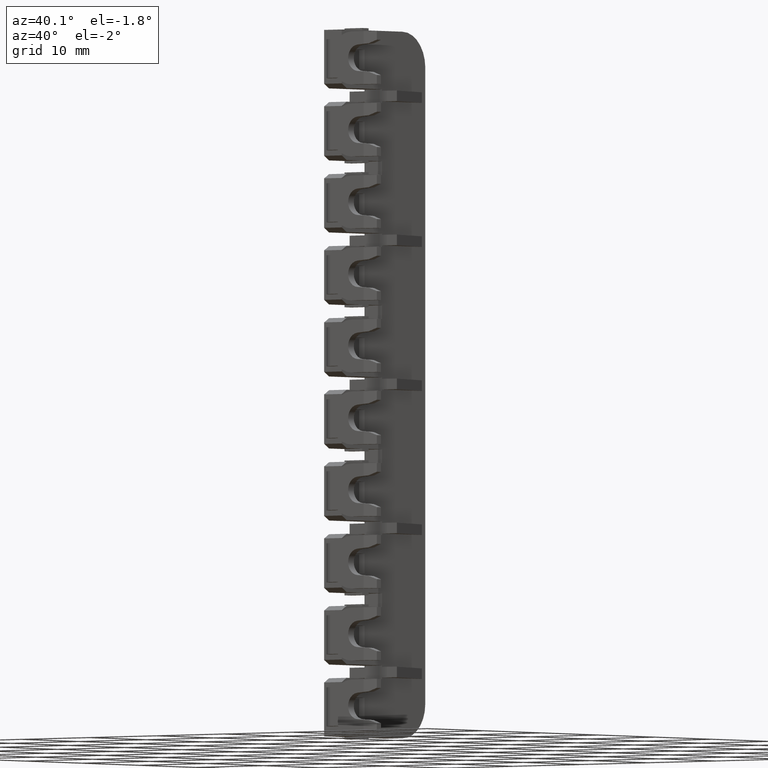
[diagram: clean part render]
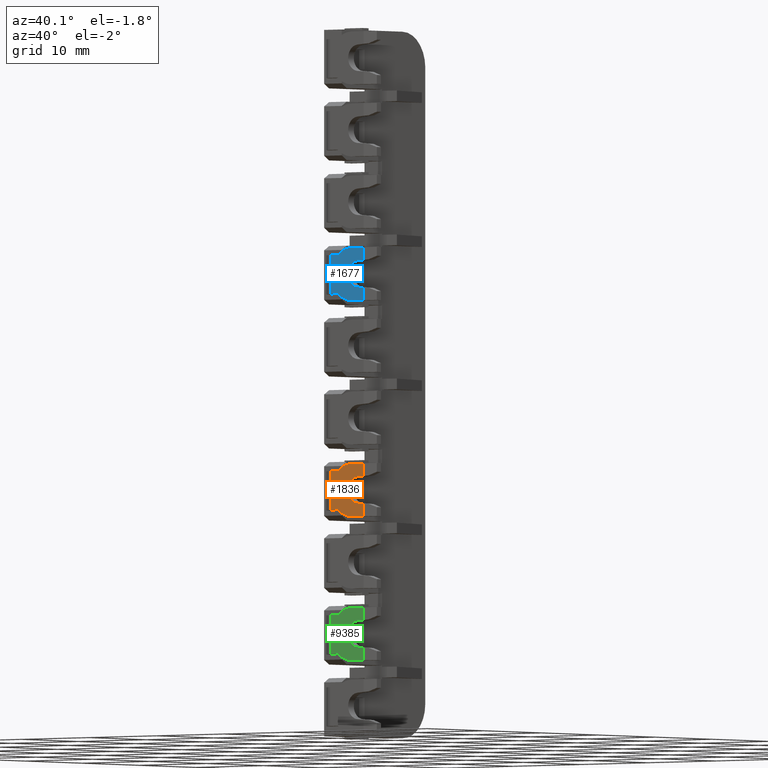
[diagram: same view with three faces highlighted in distinct colors, each labeled with its STEP entity id]
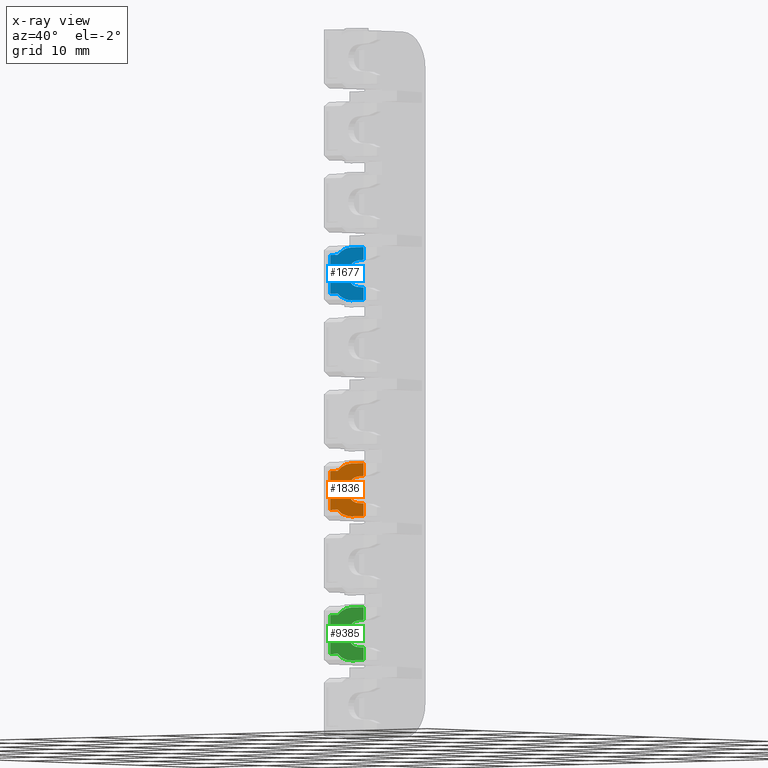
[diagram: x-ray of the same camera — body ghosted, the three highlighted faces saturated]
A machine part, auxiliary view with three faces highlighted in distinct colors.
The next image is the same camera in x-ray (body ghosted, the three faces saturated) — at least one of them is partly hidden behind the body in this view.
Their STEP definitions:

[orange] entity #1836 — the highlighted planar face has unit normal (-0, 1, 0).
#644 = CARTESIAN_POINT ( 'NONE',  ( 1559.379892790780100, 1078.959529724810000, -41.85000000000000100 ) ) ;
#649 = CARTESIAN_POINT ( 'NONE',  ( 1559.379892790780100, 1078.959529724810000, -43.28304746527870600 ) ) ;
#658 = CARTESIAN_POINT ( 'NONE',  ( 1554.445209356664900, 1078.959529724810000, -42.64999999999999900 ) ) ;
#661 = CARTESIAN_POINT ( 'NONE',  ( 1555.541669528729900, 1078.959529724810000, -42.64999999999999900 ) ) ;
#665 = CARTESIAN_POINT ( 'NONE',  ( 1557.581277334165000, 1078.959529724810000, -47.84999999999999400 ) ) ;
#684 = CARTESIAN_POINT ( 'NONE',  ( 1555.541669526664900, 1078.959529724810000, -47.04999999808789800 ) ) ;
#707 = CARTESIAN_POINT ( 'NONE',  ( 1558.465335063180000, 1078.959529724810000, -46.34543455379099400 ) ) ;
#736 = CARTESIAN_POINT ( 'NONE',  ( 1558.465335063180000, 1078.959529724810000, -43.35456544620934900 ) ) ;
#739 = CARTESIAN_POINT ( 'NONE',  ( 1554.445209356664900, 1078.959529724810000, -47.04999999808789800 ) ) ;
#1836 = ADVANCED_FACE ( 'NONE', ( #11390 ), #11417, .F. ) ;
#1886 = EDGE_CURVE ( 'NONE', #2474, #2466, #5154, .T. ) ;
#1897 = EDGE_CURVE ( 'NONE', #2458, #2454, #11649, .T. ) ;
#1904 = EDGE_CURVE ( 'NONE', #2479, #2474, #11665, .T. ) ;
#1910 = EDGE_CURVE ( 'NONE', #2479, #2454, #11645, .T. ) ;
#2381 = VERTEX_POINT ( 'NONE', #12173 ) ;
#2403 = VERTEX_POINT ( 'NONE', #12205 ) ;
#2413 = VERTEX_POINT ( 'NONE', #11515 ) ;
#2430 = VERTEX_POINT ( 'NONE', #649 ) ;
#2439 = VERTEX_POINT ( 'NONE', #644 ) ;
#2454 = VERTEX_POINT ( 'NONE', #658 ) ;
#2458 = VERTEX_POINT ( 'NONE', #661 ) ;
#2466 = VERTEX_POINT ( 'NONE', #665 ) ;
#2473 = VERTEX_POINT ( 'NONE', #736 ) ;
#2474 = VERTEX_POINT ( 'NONE', #684 ) ;
#2479 = VERTEX_POINT ( 'NONE', #739 ) ;
#2488 = VERTEX_POINT ( 'NONE', #707 ) ;
#3472 = VECTOR ( 'NONE', #13690, 1000.000000000000000 ) ;
#3486 = AXIS2_PLACEMENT_3D ( 'NONE', #12652, #12654, #12768 ) ;
#3488 = CIRCLE ( 'NONE', #3486, 3.000000000000002700 ) ;
#3490 = VECTOR ( 'NONE', #12882, 1000.000000000000000 ) ;
#3501 = VECTOR ( 'NONE', #12700, 1000.000000000000000 ) ;
#5071 = AXIS2_PLACEMENT_3D ( 'NONE', #11408, #11435, #11430 ) ;
#5122 = VECTOR ( 'NONE', #11644, 1000.000000000000000 ) ;
#5154 = CIRCLE ( 'NONE', #5155, 3.000000000000002700 ) ;
#5155 = AXIS2_PLACEMENT_3D ( 'NONE', #11634, #11604, #11627 ) ;
#5158 = VECTOR ( 'NONE', #11664, 1000.000000000000000 ) ;
#5172 = VECTOR ( 'NONE', #11674, 1000.000000000000000 ) ;
#7074 = EDGE_LOOP ( 'NONE', ( #15599, #15617, #15596, #15503, #15501, #15515, #15600, #15607, #15542, #15602, #15589, #15513 ) ) ;
#8216 = VECTOR ( 'NONE', #13662, 1000.000000000000000 ) ;
#8542 = VECTOR ( 'NONE', #13524, 1000.000000000000000 ) ;
#8557 = VECTOR ( 'NONE', #13516, 1000.000000000000000 ) ;
#8565 = CIRCLE ( 'NONE', #8577, 1.500000000000001300 ) ;
#8577 = AXIS2_PLACEMENT_3D ( 'NONE', #13472, #13474, #13510 ) ;
#9198 = EDGE_CURVE ( 'NONE', #2488, #2473, #8565, .T. ) ;
#9209 = EDGE_CURVE ( 'NONE', #2381, #2488, #13515, .T. ) ;
#9211 = EDGE_CURVE ( 'NONE', #2466, #2413, #13521, .T. ) ;
#9249 = EDGE_CURVE ( 'NONE', #2473, #2430, #13608, .T. ) ;
#9266 = EDGE_CURVE ( 'NONE', #2430, #2439, #13701, .T. ) ;
#9283 = EDGE_CURVE ( 'NONE', #2413, #2381, #12702, .T. ) ;
#9284 = EDGE_CURVE ( 'NONE', #2403, #2458, #3488, .T. ) ;
#9298 = EDGE_CURVE ( 'NONE', #2439, #2403, #12743, .T. ) ;
#11390 = FACE_OUTER_BOUND ( 'NONE', #7074, .T. ) ;
#11408 = CARTESIAN_POINT ( 'NONE',  ( 1557.581277334165000, 1078.959529724810000, -44.85000000000000100 ) ) ;
#11417 = PLANE ( 'NONE',  #5071 ) ;
#11430 = DIRECTION ( 'NONE',  ( 2.842270788972625200E-015, 0.0000000000000000000, 1.000000000000000000 ) ) ;
#11435 = DIRECTION ( 'NONE',  ( -5.551115123125779600E-017, 1.000000000000000000, 1.577777236068458100E-031 ) ) ;
#11515 = CARTESIAN_POINT ( 'NONE',  ( 1559.379892790780100, 1078.959529724810000, -47.84999999999999400 ) ) ;
#11604 = DIRECTION ( 'NONE',  ( 5.551115123125689600E-017, -1.000000000000000000, -2.891205793294685200E-016 ) ) ;
#11627 = DIRECTION ( 'NONE',  ( 0.0000000000000000000, 0.0000000000000000000, 1.000000000000000000 ) ) ;
#11634 = CARTESIAN_POINT ( 'NONE',  ( 1557.581277334165000, 1078.959529724810000, -44.85000000000000100 ) ) ;
#11641 = CARTESIAN_POINT ( 'NONE',  ( 1554.445209356664900, 1078.959529724810000, -47.04999999808789800 ) ) ;
#11642 = CARTESIAN_POINT ( 'NONE',  ( 1555.541669526664900, 1078.959529724810000, -47.04999999808789800 ) ) ;
#11644 = DIRECTION ( 'NONE',  ( 2.996938929019315300E-015, -1.611929227617499900E-016, 1.000000000000000000 ) ) ;
#11645 = LINE ( 'NONE', #11641, #5122 ) ;
#11649 = LINE ( 'NONE', #11650, #5172 ) ;
#11650 = CARTESIAN_POINT ( 'NONE',  ( 1555.541669528729900, 1078.959529724810000, -42.64999999999999900 ) ) ;
#11664 = DIRECTION ( 'NONE',  ( 1.000000000000000000, 2.775557561562884600E-017, -2.698786286577960100E-015 ) ) ;
#11665 = LINE ( 'NONE', #11642, #5158 ) ;
#11674 = DIRECTION ( 'NONE',  ( -1.000000000000000000, -2.775557561562889800E-017, 3.033297811906350000E-015 ) ) ;
#12173 = CARTESIAN_POINT ( 'NONE',  ( 1559.379892790780100, 1078.959529724810000, -46.41695253472169500 ) ) ;
#12205 = CARTESIAN_POINT ( 'NONE',  ( 1557.581277334165000, 1078.959529724810000, -41.85000000000000100 ) ) ;
#12652 = CARTESIAN_POINT ( 'NONE',  ( 1557.581277334165000, 1078.959529724810000, -44.85000000000000100 ) ) ;
#12654 = DIRECTION ( 'NONE',  ( 5.551115123125689600E-017, -1.000000000000000000, -2.891205793294685200E-016 ) ) ;
#12699 = CARTESIAN_POINT ( 'NONE',  ( 1559.379892790780100, 1078.959529724810000, -44.85000000000000100 ) ) ;
#12700 = DIRECTION ( 'NONE',  ( -8.948019354321770600E-031, -1.577777236068454800E-031, 1.000000000000000000 ) ) ;
#12702 = LINE ( 'NONE', #12699, #3501 ) ;
#12743 = LINE ( 'NONE', #12744, #3490 ) ;
#12744 = CARTESIAN_POINT ( 'NONE',  ( 1557.581277334165000, 1078.959529724810000, -41.85000000000000100 ) ) ;
#12768 = DIRECTION ( 'NONE',  ( 0.0000000000000000000, 0.0000000000000000000, 1.000000000000000000 ) ) ;
#12882 = DIRECTION ( 'NONE',  ( -1.000000000000000000, -2.775557561562889800E-017, 2.909388992282235300E-015 ) ) ;
#13472 = CARTESIAN_POINT ( 'NONE',  ( 1558.582277336664900, 1078.959529724810000, -44.85000000000000100 ) ) ;
#13474 = DIRECTION ( 'NONE',  ( -5.551115123125779600E-017, 1.000000000000000000, 1.667257283196814900E-031 ) ) ;
#13509 = CARTESIAN_POINT ( 'NONE',  ( 1561.081277336664900, 1078.959529724810000, -46.55000000000000400 ) ) ;
#13510 = DIRECTION ( 'NONE',  ( 0.0000000000000000000, 0.0000000000000000000, -1.000000000000000000 ) ) ;
#13515 = LINE ( 'NONE', #13509, #8557 ) ;
#13516 = DIRECTION ( 'NONE',  ( -0.9969563691939024000, -4.023794246251211200E-017, 0.07796151565812033100 ) ) ;
#13521 = LINE ( 'NONE', #13525, #8542 ) ;
#13524 = DIRECTION ( 'NONE',  ( 1.000000000000000000, 2.775557561562889800E-017, -2.909388992282235300E-015 ) ) ;
#13525 = CARTESIAN_POINT ( 'NONE',  ( 1557.581277334165000, 1078.959529724810000, -47.84999999999999400 ) ) ;
#13608 = LINE ( 'NONE', #13666, #8216 ) ;
#13662 = DIRECTION ( 'NONE',  ( 0.9969563691939030700, 1.510425331877653500E-017, 0.07796151565811303100 ) ) ;
#13666 = CARTESIAN_POINT ( 'NONE',  ( 1561.081277336664900, 1078.959529724810000, -43.14999999999999900 ) ) ;
#13689 = CARTESIAN_POINT ( 'NONE',  ( 1559.379892790780100, 1078.959529724810000, -44.85000000000000100 ) ) ;
#13690 = DIRECTION ( 'NONE',  ( -8.948019354321770600E-031, -1.577777236068454800E-031, 1.000000000000000000 ) ) ;
#13701 = LINE ( 'NONE', #13689, #3472 ) ;
#15501 = ORIENTED_EDGE ( 'NONE', *, *, #9249, .T. ) ;
#15503 = ORIENTED_EDGE ( 'NONE', *, *, #9198, .T. ) ;
#15513 = ORIENTED_EDGE ( 'NONE', *, *, #1886, .T. ) ;
#15515 = ORIENTED_EDGE ( 'NONE', *, *, #9266, .T. ) ;
#15542 = ORIENTED_EDGE ( 'NONE', *, *, #1897, .T. ) ;
#15589 = ORIENTED_EDGE ( 'NONE', *, *, #1904, .T. ) ;
#15596 = ORIENTED_EDGE ( 'NONE', *, *, #9209, .T. ) ;
#15599 = ORIENTED_EDGE ( 'NONE', *, *, #9211, .T. ) ;
#15600 = ORIENTED_EDGE ( 'NONE', *, *, #9298, .T. ) ;
#15602 = ORIENTED_EDGE ( 'NONE', *, *, #1910, .F. ) ;
#15607 = ORIENTED_EDGE ( 'NONE', *, *, #9284, .T. ) ;
#15617 = ORIENTED_EDGE ( 'NONE', *, *, #9283, .T. ) ;

[blue] entity #1677 — the highlighted planar face has unit normal (-0, 1, 0).
#676 = CARTESIAN_POINT ( 'NONE',  ( 1559.379892790780100, 1078.959529724810000, -23.40000000000000200 ) ) ;
#696 = CARTESIAN_POINT ( 'NONE',  ( 1555.541669526664900, 1078.959529724810000, -18.20000000191240000 ) ) ;
#709 = CARTESIAN_POINT ( 'NONE',  ( 1559.379892790780100, 1078.959529724810000, -18.83304746527860000 ) ) ;
#712 = CARTESIAN_POINT ( 'NONE',  ( 1554.445209356664900, 1078.959529724810000, -22.59999999999999800 ) ) ;
#717 = CARTESIAN_POINT ( 'NONE',  ( 1555.541669528729900, 1078.959529724810000, -22.59999999999999800 ) ) ;
#721 = CARTESIAN_POINT ( 'NONE',  ( 1558.465335063180000, 1078.959529724810000, -21.89543455379095200 ) ) ;
#732 = CARTESIAN_POINT ( 'NONE',  ( 1559.379892790780100, 1078.959529724810000, -21.96695253472160300 ) ) ;
#745 = CARTESIAN_POINT ( 'NONE',  ( 1557.581277334165000, 1078.959529724810000, -17.39999999999999900 ) ) ;
#752 = CARTESIAN_POINT ( 'NONE',  ( 1559.379892790780100, 1078.959529724810000, -17.39999999999999900 ) ) ;
#768 = CARTESIAN_POINT ( 'NONE',  ( 1558.465335063180000, 1078.959529724810000, -18.90456544620924700 ) ) ;
#777 = CARTESIAN_POINT ( 'NONE',  ( 1554.445209356664900, 1078.959529724810000, -18.20000000191235000 ) ) ;
#779 = CARTESIAN_POINT ( 'NONE',  ( 1557.581277334165000, 1078.959529724810000, -23.40000000000000200 ) ) ;
#1677 = ADVANCED_FACE ( 'NONE', ( #14490 ), #14454, .F. ) ;
#1880 = EDGE_CURVE ( 'NONE', #2522, #2502, #11552, .T. ) ;
#1911 = EDGE_CURVE ( 'NONE', #2553, #2486, #11699, .T. ) ;
#1936 = EDGE_CURVE ( 'NONE', #2557, #2506, #5197, .T. ) ;
#1949 = EDGE_CURVE ( 'NONE', #2459, #2502, #11767, .T. ) ;
#1955 = EDGE_CURVE ( 'NONE', #2563, #2542, #11811, .T. ) ;
#1958 = EDGE_CURVE ( 'NONE', #2459, #2557, #11848, .T. ) ;
#1978 = EDGE_CURVE ( 'NONE', #2504, #2542, #11827, .T. ) ;
#1983 = EDGE_CURVE ( 'NONE', #2553, #2513, #11864, .T. ) ;
#1984 = EDGE_CURVE ( 'NONE', #2506, #2486, #11872, .T. ) ;
#1986 = EDGE_CURVE ( 'NONE', #2513, #2563, #5295, .T. ) ;
#1987 = EDGE_CURVE ( 'NONE', #2504, #2540, #11905, .T. ) ;
#1988 = EDGE_CURVE ( 'NONE', #2540, #2522, #5298, .T. ) ;
#2459 = VERTEX_POINT ( 'NONE', #676 ) ;
#2486 = VERTEX_POINT ( 'NONE', #712 ) ;
#2502 = VERTEX_POINT ( 'NONE', #732 ) ;
#2504 = VERTEX_POINT ( 'NONE', #709 ) ;
#2506 = VERTEX_POINT ( 'NONE', #717 ) ;
#2513 = VERTEX_POINT ( 'NONE', #696 ) ;
#2522 = VERTEX_POINT ( 'NONE', #721 ) ;
#2540 = VERTEX_POINT ( 'NONE', #768 ) ;
#2542 = VERTEX_POINT ( 'NONE', #752 ) ;
#2553 = VERTEX_POINT ( 'NONE', #777 ) ;
#2557 = VERTEX_POINT ( 'NONE', #779 ) ;
#2563 = VERTEX_POINT ( 'NONE', #745 ) ;
#4986 = AXIS2_PLACEMENT_3D ( 'NONE', #14499, #14456, #14460 ) ;
#5137 = VECTOR ( 'NONE', #11700, 1000.000000000000000 ) ;
#5169 = VECTOR ( 'NONE', #11562, 1000.000000000000100 ) ;
#5197 = CIRCLE ( 'NONE', #5214, 2.999999999999999100 ) ;
#5204 = VECTOR ( 'NONE', #11778, 1000.000000000000000 ) ;
#5214 = AXIS2_PLACEMENT_3D ( 'NONE', #11750, #11730, #11736 ) ;
#5218 = VECTOR ( 'NONE', #11786, 1000.000000000000000 ) ;
#5239 = VECTOR ( 'NONE', #11846, 1000.000000000000000 ) ;
#5248 = AXIS2_PLACEMENT_3D ( 'NONE', #11913, #11962, #11908 ) ;
#5252 = VECTOR ( 'NONE', #11874, 1000.000000000000000 ) ;
#5253 = VECTOR ( 'NONE', #11912, 1000.000000000000000 ) ;
#5275 = VECTOR ( 'NONE', #11900, 1000.000000000000000 ) ;
#5295 = CIRCLE ( 'NONE', #5302, 2.999999999999999100 ) ;
#5298 = CIRCLE ( 'NONE', #5248, 1.500000000000001300 ) ;
#5300 = VECTOR ( 'NONE', #11876, 1000.000000000000000 ) ;
#5302 = AXIS2_PLACEMENT_3D ( 'NONE', #11929, #11942, #11930 ) ;
#7534 = ORIENTED_EDGE ( 'NONE', *, *, #1958, .F. ) ;
#7537 = ORIENTED_EDGE ( 'NONE', *, *, #1984, .F. ) ;
#7543 = ORIENTED_EDGE ( 'NONE', *, *, #1986, .F. ) ;
#7545 = ORIENTED_EDGE ( 'NONE', *, *, #1987, .F. ) ;
#7549 = ORIENTED_EDGE ( 'NONE', *, *, #1988, .F. ) ;
#7550 = ORIENTED_EDGE ( 'NONE', *, *, #1949, .T. ) ;
#7562 = ORIENTED_EDGE ( 'NONE', *, *, #1880, .F. ) ;
#7564 = ORIENTED_EDGE ( 'NONE', *, *, #1983, .F. ) ;
#7570 = ORIENTED_EDGE ( 'NONE', *, *, #1978, .T. ) ;
#7571 = ORIENTED_EDGE ( 'NONE', *, *, #1936, .F. ) ;
#7585 = ORIENTED_EDGE ( 'NONE', *, *, #1955, .F. ) ;
#7589 = ORIENTED_EDGE ( 'NONE', *, *, #1911, .T. ) ;
#11552 = LINE ( 'NONE', #11561, #5169 ) ;
#11561 = CARTESIAN_POINT ( 'NONE',  ( 1561.081277336664900, 1078.959529724810000, -22.10000000000000100 ) ) ;
#11562 = DIRECTION ( 'NONE',  ( 0.9969563691939024000, 1.510425331877653800E-017, -0.07796151565811956800 ) ) ;
#11699 = LINE ( 'NONE', #11721, #5137 ) ;
#11700 = DIRECTION ( 'NONE',  ( -3.503727310284305400E-015, -1.611929227617499900E-016, -1.000000000000000000 ) ) ;
#11721 = CARTESIAN_POINT ( 'NONE',  ( 1554.445209356664900, 1078.959529724810000, -18.20000000191235000 ) ) ;
#11730 = DIRECTION ( 'NONE',  ( -5.551115123125880100E-017, 1.000000000000000000, -2.891205793294680300E-016 ) ) ;
#11736 = DIRECTION ( 'NONE',  ( 0.0000000000000000000, 0.0000000000000000000, -1.000000000000000000 ) ) ;
#11750 = CARTESIAN_POINT ( 'NONE',  ( 1557.581277334165000, 1078.959529724810000, -20.40000000000000200 ) ) ;
#11767 = LINE ( 'NONE', #11781, #5204 ) ;
#11770 = CARTESIAN_POINT ( 'NONE',  ( 1557.581277334165000, 1078.959529724810000, -17.39999999999999900 ) ) ;
#11778 = DIRECTION ( 'NONE',  ( -1.151733797579403900E-030, -2.030817431070695200E-031, 1.000000000000000000 ) ) ;
#11781 = CARTESIAN_POINT ( 'NONE',  ( 1559.379892790780100, 1078.959529724810000, -20.40000000000000200 ) ) ;
#11786 = DIRECTION ( 'NONE',  ( 1.000000000000000000, 2.775557561562889800E-017, -3.591277247021385000E-015 ) ) ;
#11811 = LINE ( 'NONE', #11770, #5218 ) ;
#11825 = CARTESIAN_POINT ( 'NONE',  ( 1557.581277334165000, 1078.959529724810000, -23.40000000000000200 ) ) ;
#11827 = LINE ( 'NONE', #11835, #5300 ) ;
#11835 = CARTESIAN_POINT ( 'NONE',  ( 1559.379892790780100, 1078.959529724810000, -20.40000000000000200 ) ) ;
#11846 = DIRECTION ( 'NONE',  ( -1.000000000000000000, -2.775557561562889800E-017, 3.591277247021385000E-015 ) ) ;
#11848 = LINE ( 'NONE', #11825, #5239 ) ;
#11864 = LINE ( 'NONE', #11865, #5275 ) ;
#11865 = CARTESIAN_POINT ( 'NONE',  ( 1555.541669526664900, 1078.959529724810000, -18.20000000191240000 ) ) ;
#11872 = LINE ( 'NONE', #11873, #5252 ) ;
#11873 = CARTESIAN_POINT ( 'NONE',  ( 1555.541669528729900, 1078.959529724810000, -22.59999999999999800 ) ) ;
#11874 = DIRECTION ( 'NONE',  ( -1.000000000000000000, -2.775557561562889800E-017, 3.467368427397270700E-015 ) ) ;
#11875 = CARTESIAN_POINT ( 'NONE',  ( 1561.081277336664900, 1078.959529724810000, -18.70000000000000300 ) ) ;
#11876 = DIRECTION ( 'NONE',  ( -1.151733797579403900E-030, -2.030817431070695200E-031, 1.000000000000000000 ) ) ;
#11900 = DIRECTION ( 'NONE',  ( 1.000000000000000000, 2.775557561562884600E-017, -3.801879952725660500E-015 ) ) ;
#11905 = LINE ( 'NONE', #11875, #5253 ) ;
#11908 = DIRECTION ( 'NONE',  ( 0.0000000000000000000, 0.0000000000000000000, 1.000000000000000000 ) ) ;
#11912 = DIRECTION ( 'NONE',  ( -0.9969563691939028500, -4.023794246251209300E-017, -0.07796151565811380900 ) ) ;
#11913 = CARTESIAN_POINT ( 'NONE',  ( 1558.582277336664900, 1078.959529724810000, -20.40000000000000200 ) ) ;
#11929 = CARTESIAN_POINT ( 'NONE',  ( 1557.581277334165000, 1078.959529724810000, -20.40000000000000200 ) ) ;
#11930 = DIRECTION ( 'NONE',  ( 0.0000000000000000000, 0.0000000000000000000, -1.000000000000000000 ) ) ;
#11942 = DIRECTION ( 'NONE',  ( -5.551115123125880100E-017, 1.000000000000000000, -2.891205793294680300E-016 ) ) ;
#11962 = DIRECTION ( 'NONE',  ( 5.551115123125779600E-017, -1.000000000000000000, -1.941337383942334800E-031 ) ) ;
#14454 = PLANE ( 'NONE',  #4986 ) ;
#14456 = DIRECTION ( 'NONE',  ( -5.551115123125779600E-017, 1.000000000000000000, 2.030817431070693400E-031 ) ) ;
#14460 = DIRECTION ( 'NONE',  ( -3.658395450330995500E-015, 0.0000000000000000000, -1.000000000000000000 ) ) ;
#14490 = FACE_OUTER_BOUND ( 'NONE', #16099, .T. ) ;
#14499 = CARTESIAN_POINT ( 'NONE',  ( 1557.581277334165000, 1078.959529724810000, -20.40000000000000200 ) ) ;
#16099 = EDGE_LOOP ( 'NONE', ( #7534, #7550, #7562, #7549, #7545, #7570, #7585, #7543, #7564, #7589, #7537, #7571 ) ) ;

[green] entity #9385 — the highlighted planar face has unit normal (-0, 1, 0).
#2321 = VERTEX_POINT ( 'NONE', #12097 ) ;
#2322 = VERTEX_POINT ( 'NONE', #12155 ) ;
#2324 = VERTEX_POINT ( 'NONE', #12156 ) ;
#2335 = VERTEX_POINT ( 'NONE', #12104 ) ;
#2337 = VERTEX_POINT ( 'NONE', #12126 ) ;
#2338 = VERTEX_POINT ( 'NONE', #12127 ) ;
#2355 = VERTEX_POINT ( 'NONE', #12221 ) ;
#2359 = VERTEX_POINT ( 'NONE', #12179 ) ;
#2362 = VERTEX_POINT ( 'NONE', #12192 ) ;
#2379 = VERTEX_POINT ( 'NONE', #12212 ) ;
#2389 = VERTEX_POINT ( 'NONE', #12176 ) ;
#2393 = VERTEX_POINT ( 'NONE', #12177 ) ;
#3646 = AXIS2_PLACEMENT_3D ( 'NONE', #9634, #9635, #9662 ) ;
#4116 = DIRECTION ( 'NONE',  ( -8.948019354321770600E-031, -1.577777236068454800E-031, 1.000000000000000000 ) ) ;
#4126 = LINE ( 'NONE', #4159, #8044 ) ;
#4159 = CARTESIAN_POINT ( 'NONE',  ( 1559.379892790780100, 1078.959529724810000, -61.15000000000000600 ) ) ;
#4415 = CARTESIAN_POINT ( 'NONE',  ( 1558.582277336664900, 1078.959529724810000, -61.15000000000000600 ) ) ;
#4424 = DIRECTION ( 'NONE',  ( -0.9969563691939024000, -4.023794246251211200E-017, 0.07796151565812033100 ) ) ;
#4435 = CARTESIAN_POINT ( 'NONE',  ( 1561.081277336664900, 1078.959529724810000, -62.85000000000000100 ) ) ;
#4438 = DIRECTION ( 'NONE',  ( -5.551115123125779600E-017, 1.000000000000000000, 1.667257283196814900E-031 ) ) ;
#4447 = DIRECTION ( 'NONE',  ( 0.0000000000000000000, 0.0000000000000000000, -1.000000000000000000 ) ) ;
#4448 = LINE ( 'NONE', #4435, #8142 ) ;
#4472 = LINE ( 'NONE', #4550, #8208 ) ;
#4498 = LINE ( 'NONE', #4501, #8163 ) ;
#4501 = CARTESIAN_POINT ( 'NONE',  ( 1557.581277334165000, 1078.959529724810000, -58.14999999999999900 ) ) ;
#4503 = DIRECTION ( 'NONE',  ( -1.000000000000000000, -2.775557561562889800E-017, 2.909388992282235300E-015 ) ) ;
#4512 = CARTESIAN_POINT ( 'NONE',  ( 1561.081277336664900, 1078.959529724810000, -59.45000000000000300 ) ) ;
#4513 = LINE ( 'NONE', #4540, #8153 ) ;
#4517 = DIRECTION ( 'NONE',  ( -8.948019354321770600E-031, -1.577777236068454800E-031, 1.000000000000000000 ) ) ;
#4521 = LINE ( 'NONE', #4512, #8206 ) ;
#4540 = CARTESIAN_POINT ( 'NONE',  ( 1557.581277334165000, 1078.959529724810000, -64.15000000000000600 ) ) ;
#4541 = DIRECTION ( 'NONE',  ( 1.000000000000000000, 2.775557561562889800E-017, -2.909388992282235300E-015 ) ) ;
#4542 = DIRECTION ( 'NONE',  ( 0.9969563691939030700, 1.510425331877653500E-017, 0.07796151565811303100 ) ) ;
#4550 = CARTESIAN_POINT ( 'NONE',  ( 1559.379892790780100, 1078.959529724810000, -61.15000000000000600 ) ) ;
#6527 = EDGE_CURVE ( 'NONE', #2324, #2362, #4126, .T. ) ;
#6603 = EDGE_CURVE ( 'NONE', #2335, #2338, #4448, .T. ) ;
#6606 = EDGE_CURVE ( 'NONE', #2338, #2389, #8113, .T. ) ;
#6627 = EDGE_CURVE ( 'NONE', #2362, #2379, #4498, .T. ) ;
#6635 = EDGE_CURVE ( 'NONE', #2321, #2337, #4513, .T. ) ;
#6640 = EDGE_CURVE ( 'NONE', #2337, #2335, #4472, .T. ) ;
#6643 = EDGE_CURVE ( 'NONE', #2389, #2324, #4521, .T. ) ;
#7065 = EDGE_LOOP ( 'NONE', ( #15273, #15288, #15331, #15367, #15337, #15259, #15289, #15318, #15319, #15276, #15351, #15281 ) ) ;
#8044 = VECTOR ( 'NONE', #4116, 1000.000000000000000 ) ;
#8099 = AXIS2_PLACEMENT_3D ( 'NONE', #4415, #4438, #4447 ) ;
#8113 = CIRCLE ( 'NONE', #8099, 1.499999999999994400 ) ;
#8142 = VECTOR ( 'NONE', #4424, 1000.000000000000000 ) ;
#8153 = VECTOR ( 'NONE', #4541, 1000.000000000000000 ) ;
#8163 = VECTOR ( 'NONE', #4503, 1000.000000000000000 ) ;
#8206 = VECTOR ( 'NONE', #4542, 1000.000000000000000 ) ;
#8208 = VECTOR ( 'NONE', #4517, 1000.000000000000000 ) ;
#8515 = VECTOR ( 'NONE', #13289, 1000.000000000000000 ) ;
#8536 = VECTOR ( 'NONE', #13478, 1000.000000000000000 ) ;
#8537 = AXIS2_PLACEMENT_3D ( 'NONE', #13571, #13564, #13591 ) ;
#8554 = VECTOR ( 'NONE', #13439, 1000.000000000000000 ) ;
#8558 = CIRCLE ( 'NONE', #8537, 3.000000000000002700 ) ;
#8685 = CIRCLE ( 'NONE', #8713, 3.000000000000002700 ) ;
#8713 = AXIS2_PLACEMENT_3D ( 'NONE', #13548, #13576, #13577 ) ;
#9138 = EDGE_CURVE ( 'NONE', #2359, #2355, #13320, .T. ) ;
#9178 = EDGE_CURVE ( 'NONE', #2322, #2355, #13443, .T. ) ;
#9191 = EDGE_CURVE ( 'NONE', #2359, #2393, #13477, .T. ) ;
#9214 = EDGE_CURVE ( 'NONE', #2379, #2322, #8558, .T. ) ;
#9219 = EDGE_CURVE ( 'NONE', #2393, #2321, #8685, .T. ) ;
#9385 = ADVANCED_FACE ( 'NONE', ( #9639 ), #9660, .F. ) ;
#9634 = CARTESIAN_POINT ( 'NONE',  ( 1557.581277334165000, 1078.959529724810000, -61.15000000000000600 ) ) ;
#9635 = DIRECTION ( 'NONE',  ( -5.551115123125779600E-017, 1.000000000000000000, 1.577777236068458100E-031 ) ) ;
#9639 = FACE_OUTER_BOUND ( 'NONE', #7065, .T. ) ;
#9660 = PLANE ( 'NONE',  #3646 ) ;
#9662 = DIRECTION ( 'NONE',  ( 2.842270788972625200E-015, 0.0000000000000000000, 1.000000000000000000 ) ) ;
#12097 = CARTESIAN_POINT ( 'NONE',  ( 1557.581277334165000, 1078.959529724810000, -64.15000000000000600 ) ) ;
#12104 = CARTESIAN_POINT ( 'NONE',  ( 1559.379892790780100, 1078.959529724810000, -62.71695253472179800 ) ) ;
#12126 = CARTESIAN_POINT ( 'NONE',  ( 1559.379892790780100, 1078.959529724810000, -64.15000000000000600 ) ) ;
#12127 = CARTESIAN_POINT ( 'NONE',  ( 1558.465335063180000, 1078.959529724810000, -62.64543455379109800 ) ) ;
#12155 = CARTESIAN_POINT ( 'NONE',  ( 1555.541669528724900, 1078.959529724810000, -58.95000000000000300 ) ) ;
#12156 = CARTESIAN_POINT ( 'NONE',  ( 1559.379892790780100, 1078.959529724810000, -59.58304746527869600 ) ) ;
#12176 = CARTESIAN_POINT ( 'NONE',  ( 1558.465335063180000, 1078.959529724810000, -59.65456544620939600 ) ) ;
#12177 = CARTESIAN_POINT ( 'NONE',  ( 1555.541669526664900, 1078.959529724810000, -63.34999999808789500 ) ) ;
#12179 = CARTESIAN_POINT ( 'NONE',  ( 1554.445209356664900, 1078.959529724810000, -63.34999999808799500 ) ) ;
#12192 = CARTESIAN_POINT ( 'NONE',  ( 1559.379892790780100, 1078.959529724810000, -58.14999999999999900 ) ) ;
#12212 = CARTESIAN_POINT ( 'NONE',  ( 1557.581277334165000, 1078.959529724810000, -58.14999999999999900 ) ) ;
#12221 = CARTESIAN_POINT ( 'NONE',  ( 1554.445209356664900, 1078.959529724810000, -58.95000000000000300 ) ) ;
#13289 = DIRECTION ( 'NONE',  ( 2.996938929019315300E-015, -1.611929227617499900E-016, 1.000000000000000000 ) ) ;
#13300 = CARTESIAN_POINT ( 'NONE',  ( 1554.445209356664900, 1078.959529724810000, -63.34999999808799500 ) ) ;
#13320 = LINE ( 'NONE', #13300, #8515 ) ;
#13437 = CARTESIAN_POINT ( 'NONE',  ( 1555.541669528724900, 1078.959529724810000, -58.95000000000000300 ) ) ;
#13439 = DIRECTION ( 'NONE',  ( -1.000000000000000000, -2.775557561562889800E-017, 3.033297811906350000E-015 ) ) ;
#13443 = LINE ( 'NONE', #13437, #8554 ) ;
#13477 = LINE ( 'NONE', #13482, #8536 ) ;
#13478 = DIRECTION ( 'NONE',  ( 1.000000000000000000, 2.775557561562884600E-017, -2.698786286577960100E-015 ) ) ;
#13482 = CARTESIAN_POINT ( 'NONE',  ( 1555.541669526664900, 1078.959529724810000, -63.34999999808789500 ) ) ;
#13548 = CARTESIAN_POINT ( 'NONE',  ( 1557.581277334165000, 1078.959529724810000, -61.15000000000000600 ) ) ;
#13564 = DIRECTION ( 'NONE',  ( 5.551115123125689600E-017, -1.000000000000000000, -2.891205793294685200E-016 ) ) ;
#13571 = CARTESIAN_POINT ( 'NONE',  ( 1557.581277334165000, 1078.959529724810000, -61.15000000000000600 ) ) ;
#13576 = DIRECTION ( 'NONE',  ( 5.551115123125689600E-017, -1.000000000000000000, -2.891205793294685200E-016 ) ) ;
#13577 = DIRECTION ( 'NONE',  ( 0.0000000000000000000, 0.0000000000000000000, 1.000000000000000000 ) ) ;
#13591 = DIRECTION ( 'NONE',  ( 0.0000000000000000000, 0.0000000000000000000, 1.000000000000000000 ) ) ;
#15259 = ORIENTED_EDGE ( 'NONE', *, *, #6527, .T. ) ;
#15273 = ORIENTED_EDGE ( 'NONE', *, *, #6635, .T. ) ;
#15276 = ORIENTED_EDGE ( 'NONE', *, *, #9138, .F. ) ;
#15281 = ORIENTED_EDGE ( 'NONE', *, *, #9219, .T. ) ;
#15288 = ORIENTED_EDGE ( 'NONE', *, *, #6640, .T. ) ;
#15289 = ORIENTED_EDGE ( 'NONE', *, *, #6627, .T. ) ;
#15318 = ORIENTED_EDGE ( 'NONE', *, *, #9214, .T. ) ;
#15319 = ORIENTED_EDGE ( 'NONE', *, *, #9178, .T. ) ;
#15331 = ORIENTED_EDGE ( 'NONE', *, *, #6603, .T. ) ;
#15337 = ORIENTED_EDGE ( 'NONE', *, *, #6643, .T. ) ;
#15351 = ORIENTED_EDGE ( 'NONE', *, *, #9191, .T. ) ;
#15367 = ORIENTED_EDGE ( 'NONE', *, *, #6606, .T. ) ;